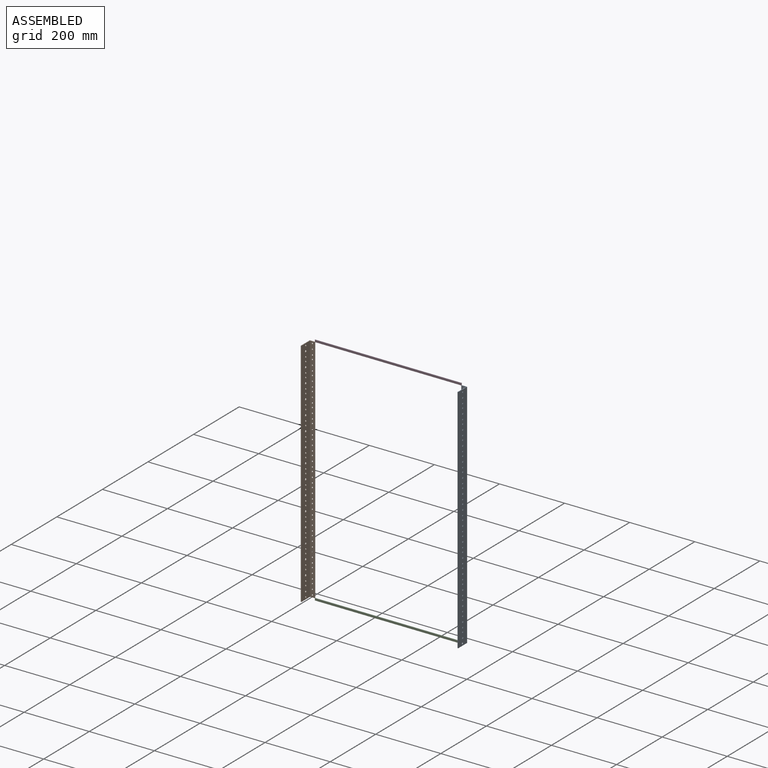
[diagram: assembled view]
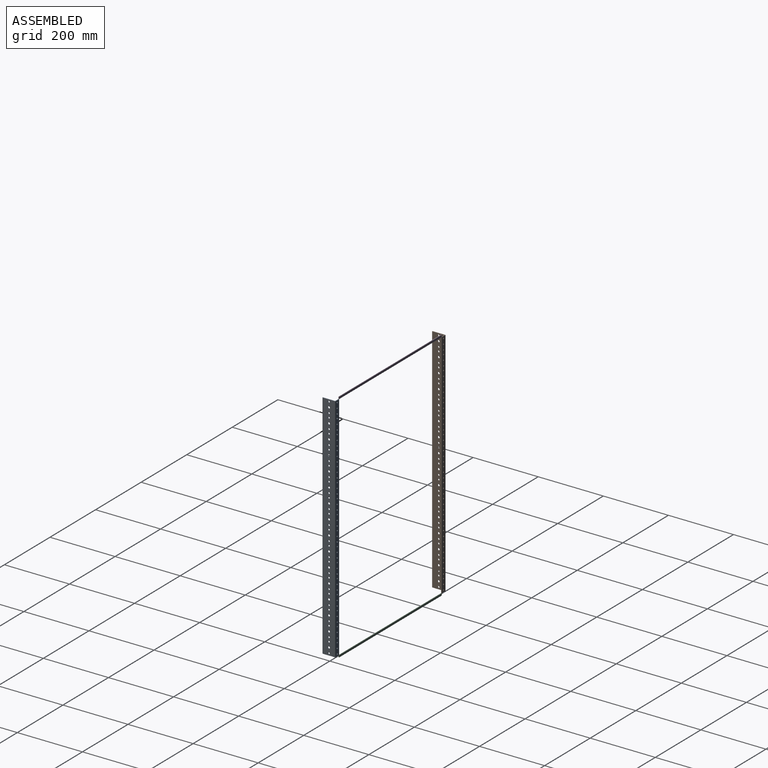
[diagram: assembled view, second angle]
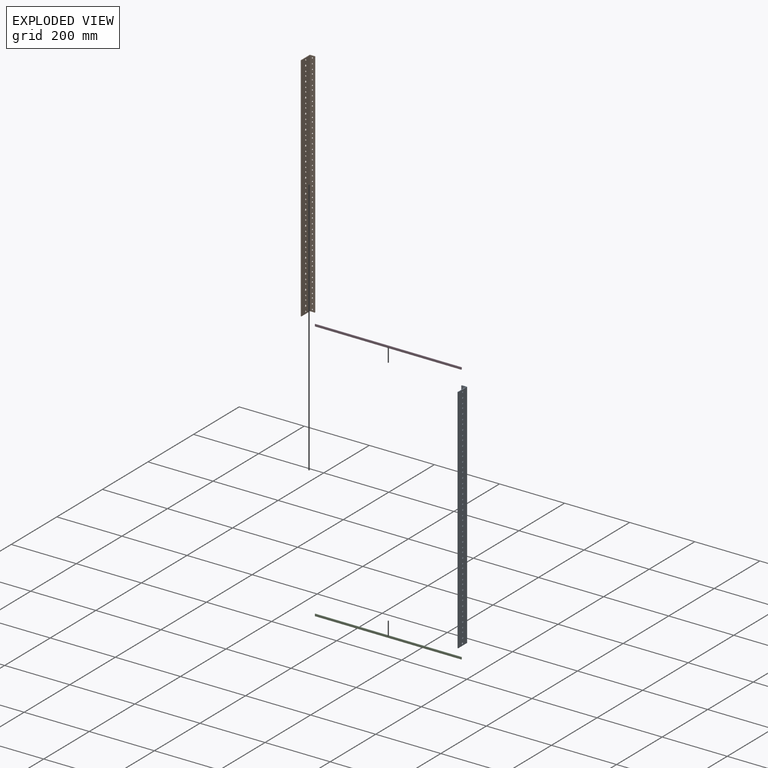
[diagram: exploded view]
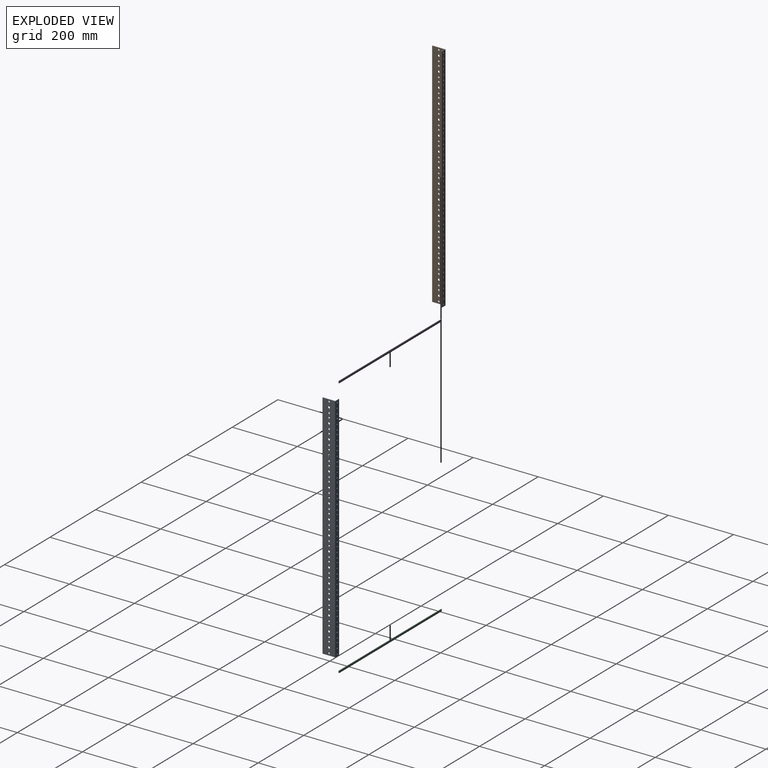
[diagram: exploded view, second angle]
ASSEMBLY  parts=4 mates=3
PART A: 105 faces, bbox 16.7x39.6x711.2 mm
  f0: plane 39.62x16.69mm, normal (0,0,-1), area 108.6mm2, adj f1,f3,f4,f5,f6,f7,f8
  f1: plane 711.2x2mm, normal (1,0,0), area 1422.4mm2, adj f0,f2,f4,f5
  f2: plane 39.62x16.69mm, normal (0,0,1), area 108.6mm2, adj f1,f3,f4,f5,f6,f7,f8
  f3: plane 711.2x39.21mm, normal (-1,0,0), area 26692.1mm2, adj f0,f2,f7,f8,f57,f58,f59,f60
  f4: plane 711.2x14.69mm, normal (0,-1,0), area 9854.1mm2, adj f0,f1,f2,f6,f9,f10,f11,f12
  f5: plane 711.2x16.28mm, normal (0,1,0), area 10987.4mm2, adj f0,f1,f2,f8,f9,f10,f11,f12
  f6: plane 711.2x37.62mm, normal (1,0,0), area 25558.7mm2, adj f0,f2,f4,f7,f57,f58,f59,f60
  f7: plane 711.2x2mm, normal (0,-1,0), area 1422.4mm2, adj f0,f2,f3,f6
  f8: cylinder r=0.41mm len=711.2mm, axis (0,0,-1), area 454mm2, adj f0,f2,f3,f5
  f9: cylinder r=1.98mm len=3.96mm, axis (0,1,0), area 24.9mm2, adj f4,f5
  f10: cylinder r=1.98mm len=3.96mm, axis (0,1,0), area 24.9mm2, adj f4,f5
  f11: cylinder r=1.98mm len=3.96mm, axis (0,1,0), area 24.9mm2, adj f4,f5
  f12: cylinder r=1.98mm len=3.96mm, axis (0,1,0), area 24.9mm2, adj f4,f5
  f13: cylinder r=1.98mm len=3.96mm, axis (0,1,0), area 24.9mm2, adj f4,f5
  f14: cylinder r=1.98mm len=3.96mm, axis (0,1,0), area 24.9mm2, adj f4,f5
  f15: cylinder r=1.98mm len=3.96mm, axis (0,1,0), area 24.9mm2, adj f4,f5
  f16: cylinder r=1.98mm len=3.96mm, axis (0,1,0), area 24.9mm2, adj f4,f5
  f17: cylinder r=1.98mm len=3.96mm, axis (0,1,0), area 24.9mm2, adj f4,f5
  f18: cylinder r=1.98mm len=3.96mm, axis (0,1,0), area 24.9mm2, adj f4,f5
  f19: cylinder r=1.98mm len=3.96mm, axis (0,1,0), area 24.9mm2, adj f4,f5
  f20: cylinder r=1.98mm len=3.96mm, axis (0,1,0), area 24.9mm2, adj f4,f5
  f21: cylinder r=1.98mm len=3.96mm, axis (0,1,0), area 24.9mm2, adj f4,f5
  f22: cylinder r=1.98mm len=3.96mm, axis (0,1,0), area 24.9mm2, adj f4,f5
  f23: cylinder r=1.98mm len=3.96mm, axis (0,1,0), area 24.9mm2, adj f4,f5
  f24: cylinder r=1.98mm len=3.96mm, axis (0,1,0), area 24.9mm2, adj f4,f5
  f25: cylinder r=1.98mm len=3.96mm, axis (0,1,0), area 24.9mm2, adj f4,f5
  f26: cylinder r=1.98mm len=3.96mm, axis (0,1,0), area 24.9mm2, adj f4,f5
  f27: cylinder r=1.98mm len=3.96mm, axis (0,1,0), area 24.9mm2, adj f4,f5
  f28: cylinder r=1.98mm len=3.96mm, axis (0,1,0), area 24.9mm2, adj f4,f5
  f29: cylinder r=1.98mm len=3.96mm, axis (0,1,0), area 24.9mm2, adj f4,f5
  f30: cylinder r=1.98mm len=3.96mm, axis (0,1,0), area 24.9mm2, adj f4,f5
  f31: cylinder r=1.98mm len=3.96mm, axis (0,1,0), area 24.9mm2, adj f4,f5
  f32: cylinder r=1.98mm len=3.96mm, axis (0,1,0), area 24.9mm2, adj f4,f5
  f33: cylinder r=1.98mm len=3.96mm, axis (0,1,0), area 24.9mm2, adj f4,f5
  f34: cylinder r=1.98mm len=3.96mm, axis (0,1,0), area 24.9mm2, adj f4,f5
  f35: cylinder r=1.98mm len=3.96mm, axis (0,1,0), area 24.9mm2, adj f4,f5
  f36: cylinder r=1.98mm len=3.96mm, axis (0,1,0), area 24.9mm2, adj f4,f5
  f37: cylinder r=1.98mm len=3.96mm, axis (0,1,0), area 24.9mm2, adj f4,f5
  f38: cylinder r=1.98mm len=3.96mm, axis (0,1,0), area 24.9mm2, adj f4,f5
  f39: cylinder r=1.98mm len=3.96mm, axis (0,1,0), area 24.9mm2, adj f4,f5
  f40: cylinder r=1.98mm len=3.96mm, axis (0,1,0), area 24.9mm2, adj f4,f5
  f41: cylinder r=1.98mm len=3.96mm, axis (0,1,0), area 24.9mm2, adj f4,f5
  f42: cylinder r=1.98mm len=3.96mm, axis (0,1,0), area 24.9mm2, adj f4,f5
  f43: cylinder r=1.98mm len=3.96mm, axis (0,1,0), area 24.9mm2, adj f4,f5
  f44: cylinder r=1.98mm len=3.96mm, axis (0,1,0), area 24.9mm2, adj f4,f5
  f45: cylinder r=1.98mm len=3.96mm, axis (0,1,0), area 24.9mm2, adj f4,f5
  f46: cylinder r=1.98mm len=3.96mm, axis (0,1,0), area 24.9mm2, adj f4,f5
  f47: cylinder r=1.98mm len=3.96mm, axis (0,1,0), area 24.9mm2, adj f4,f5
  f48: cylinder r=1.98mm len=3.96mm, axis (0,1,0), area 24.9mm2, adj f4,f5
  f49: cylinder r=1.98mm len=3.96mm, axis (0,1,0), area 24.9mm2, adj f4,f5
  f50: cylinder r=1.98mm len=3.96mm, axis (0,1,0), area 24.9mm2, adj f4,f5
  f51: cylinder r=1.98mm len=3.96mm, axis (0,1,0), area 24.9mm2, adj f4,f5
  f52: cylinder r=1.98mm len=3.96mm, axis (0,1,0), area 24.9mm2, adj f4,f5
  f53: cylinder r=1.98mm len=3.96mm, axis (0,1,0), area 24.9mm2, adj f4,f5
  f54: cylinder r=1.98mm len=3.96mm, axis (0,1,0), area 24.9mm2, adj f4,f5
  f55: cylinder r=1.98mm len=3.96mm, axis (0,1,0), area 24.9mm2, adj f4,f5
  f56: cylinder r=1.98mm len=3.96mm, axis (0,1,0), area 24.9mm2, adj f4,f5
  f57: cylinder r=2.62mm len=5.23mm, axis (-1,0,0), area 32.9mm2, adj f3,f6
  f58: cylinder r=2.62mm len=5.23mm, axis (-1,0,0), area 32.9mm2, adj f3,f6
  f59: cylinder r=2.62mm len=5.23mm, axis (-1,0,0), area 32.9mm2, adj f3,f6
  f60: cylinder r=2.62mm len=5.23mm, axis (-1,0,0), area 32.9mm2, adj f3,f6
  f61: cylinder r=2.62mm len=5.23mm, axis (-1,0,0), area 32.9mm2, adj f3,f6
  f62: cylinder r=2.62mm len=5.23mm, axis (-1,0,0), area 32.9mm2, adj f3,f6
  f63: cylinder r=2.62mm len=5.23mm, axis (-1,0,0), area 32.9mm2, adj f3,f6
  f64: cylinder r=2.62mm len=5.23mm, axis (-1,0,0), area 32.9mm2, adj f3,f6
  f65: cylinder r=2.62mm len=5.23mm, axis (-1,0,0), area 32.9mm2, adj f3,f6
  f66: cylinder r=2.62mm len=5.23mm, axis (-1,0,0), area 32.9mm2, adj f3,f6
  f67: cylinder r=2.62mm len=5.23mm, axis (-1,0,0), area 32.9mm2, adj f3,f6
  f68: cylinder r=2.62mm len=5.23mm, axis (-1,0,0), area 32.9mm2, adj f3,f6
  f69: cylinder r=2.62mm len=5.23mm, axis (-1,0,0), area 32.9mm2, adj f3,f6
  f70: cylinder r=2.62mm len=5.23mm, axis (-1,0,0), area 32.9mm2, adj f3,f6
  f71: cylinder r=2.62mm len=5.23mm, axis (-1,0,0), area 32.9mm2, adj f3,f6
  f72: cylinder r=2.62mm len=5.23mm, axis (-1,0,0), area 32.9mm2, adj f3,f6
  f73: cylinder r=2.62mm len=5.23mm, axis (-1,0,0), area 32.9mm2, adj f3,f6
  f74: cylinder r=2.62mm len=5.23mm, axis (-1,0,0), area 32.9mm2, adj f3,f6
  f75: cylinder r=2.62mm len=5.23mm, axis (-1,0,0), area 32.9mm2, adj f3,f6
  f76: cylinder r=2.62mm len=5.23mm, axis (-1,0,0), area 32.9mm2, adj f3,f6
  f77: cylinder r=2.62mm len=5.23mm, axis (-1,0,0), area 32.9mm2, adj f3,f6
  f78: cylinder r=2.62mm len=5.23mm, axis (-1,0,0), area 32.9mm2, adj f3,f6
  f79: cylinder r=2.62mm len=5.23mm, axis (-1,0,0), area 32.9mm2, adj f3,f6
  f80: cylinder r=2.62mm len=5.23mm, axis (-1,0,0), area 32.9mm2, adj f3,f6
  f81: cylinder r=2.62mm len=5.23mm, axis (-1,0,0), area 32.9mm2, adj f3,f6
  f82: cylinder r=2.62mm len=5.23mm, axis (-1,0,0), area 32.9mm2, adj f3,f6
  f83: cylinder r=2.62mm len=5.23mm, axis (-1,0,0), area 32.9mm2, adj f3,f6
  f84: cylinder r=2.62mm len=5.23mm, axis (-1,0,0), area 32.9mm2, adj f3,f6
  f85: cylinder r=2.62mm len=5.23mm, axis (-1,0,0), area 32.9mm2, adj f3,f6
  f86: cylinder r=2.62mm len=5.23mm, axis (-1,0,0), area 32.9mm2, adj f3,f6
  f87: cylinder r=2.62mm len=5.23mm, axis (-1,0,0), area 32.9mm2, adj f3,f6
  f88: cylinder r=2.62mm len=5.23mm, axis (-1,0,0), area 32.9mm2, adj f3,f6
  f89: cylinder r=3.17mm len=6.35mm, axis (-1,0,0), area 39.9mm2, adj f3,f6
  f90: cylinder r=3.17mm len=6.35mm, axis (-1,0,0), area 39.9mm2, adj f3,f6
  f91: cylinder r=3.17mm len=6.35mm, axis (-1,0,0), area 39.9mm2, adj f3,f6
  f92: cylinder r=3.17mm len=6.35mm, axis (-1,0,0), area 39.9mm2, adj f3,f6
  f93: cylinder r=3.17mm len=6.35mm, axis (-1,0,0), area 39.9mm2, adj f3,f6
  f94: cylinder r=3.17mm len=6.35mm, axis (-1,0,0), area 39.9mm2, adj f3,f6
  f95: cylinder r=3.17mm len=6.35mm, axis (-1,0,0), area 39.9mm2, adj f3,f6
  f96: cylinder r=3.17mm len=6.35mm, axis (-1,0,0), area 39.9mm2, adj f3,f6
  f97: cylinder r=3.17mm len=6.35mm, axis (-1,0,0), area 39.9mm2, adj f3,f6
  f98: cylinder r=3.17mm len=6.35mm, axis (-1,0,0), area 39.9mm2, adj f3,f6
  f99: cylinder r=3.17mm len=6.35mm, axis (-1,0,0), area 39.9mm2, adj f3,f6
  f100: cylinder r=3.17mm len=6.35mm, axis (-1,0,0), area 39.9mm2, adj f3,f6
  f101: cylinder r=3.17mm len=6.35mm, axis (-1,0,0), area 39.9mm2, adj f3,f6
  f102: cylinder r=3.17mm len=6.35mm, axis (-1,0,0), area 39.9mm2, adj f3,f6
  f103: cylinder r=3.17mm len=6.35mm, axis (-1,0,0), area 39.9mm2, adj f3,f6
  f104: cylinder r=3.17mm len=6.35mm, axis (-1,0,0), area 39.9mm2, adj f3,f6
PART B: same geometry as A
PART C: 6 faces, bbox 450.1x2x6.4 mm
  f0: plane 6.35x2mm, normal (-1,0,0), area 12.7mm2, adj f1,f3,f4,f5
  f1: plane 450.09x2mm, normal (0,0,-1), area 900.2mm2, adj f0,f2,f4,f5
  f2: plane 6.35x2mm, normal (1,0,0), area 12.7mm2, adj f1,f3,f4,f5
  f3: plane 450.09x2mm, normal (0,0,1), area 900.2mm2, adj f0,f2,f4,f5
  f4: plane 450.09x6.35mm, normal (0,-1,0), area 2858.1mm2, adj f0,f1,f2,f3
  f5: plane 450.09x6.35mm, normal (0,1,0), area 2858.1mm2, adj f0,f1,f2,f3
PART D: same geometry as C
PLACE A rot(axis=(0,-1,0),180deg) t=(126.02,-162.46,-681.52)mm
PLACE B t=(-379.86,-162.46,94.7)mm
PLACE C t=(-351.97,-162.46,-655.36)mm
PLACE D t=(-351.97,-162.46,62.19)mm
MATE slider D.f1 <-> A.f0  axis (0,0,1) through (98.12,-162.46,62.19)mm
MATE slider C.f3 <-> A.f2  axis (0,0,1) through (98.12,-162.46,-649.01)mm
MATE slider B.f2 <-> D.f1  axis (0,0,1) through (-351.97,-162.46,62.19)mm
